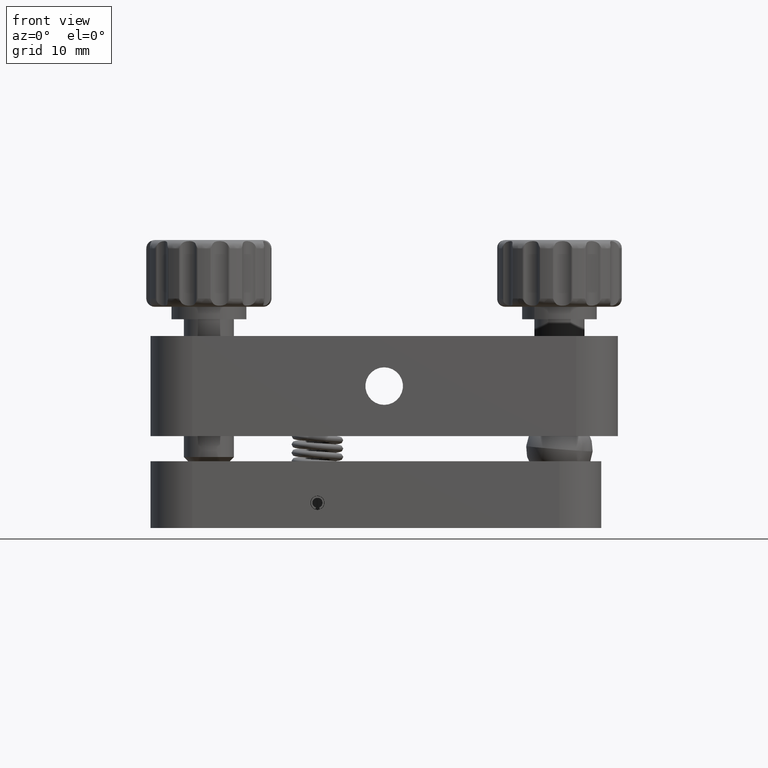
[diagram: clean part render]
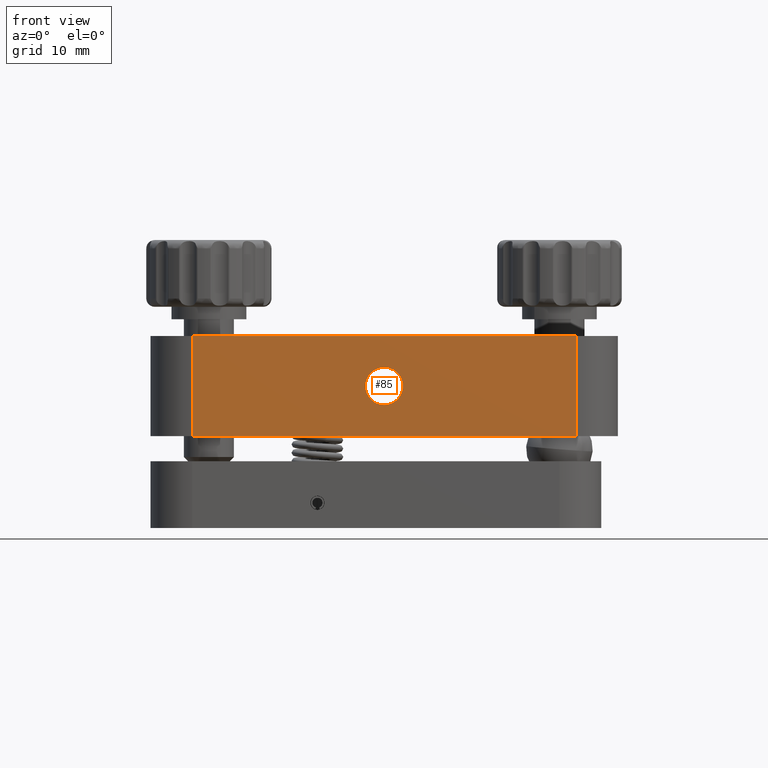
[diagram: same view with one face highlighted and labeled with its STEP entity id]
A machine part, front view. The second image highlights one B-rep face of the part: STEP entity #85.
In plain terms, the highlighted planar face has unit normal (-0, -1, 0).
Its self-contained STEP definition (entity closure, byte-faithful):
#85 = ADVANCED_FACE ( 'NONE', ( #11454, #5764 ), #19675, .T. ) ;
#942 = CARTESIAN_POINT ( 'NONE',  ( -22.99999999999997200, -28.00000000000000000, 6.000000000000000000 ) ) ;
#1450 = EDGE_CURVE ( 'NONE', #5924, #11121, #3036, .T. ) ;
#2143 = AXIS2_PLACEMENT_3D ( 'NONE', #4170, #10253, #8809 ) ;
#3036 = LINE ( 'NONE', #6742, #7940 ) ;
#3548 = ORIENTED_EDGE ( 'NONE', *, *, #1450, .F. ) ;
#3875 = VECTOR ( 'NONE', #13483, 1000.000000000000000 ) ;
#4170 = CARTESIAN_POINT ( 'NONE',  ( -22.99999999999996800, -28.00000000000000000, 6.000000000000000000 ) ) ;
#4445 = CARTESIAN_POINT ( 'NONE',  ( -3.275831096672979200E-015, -28.00000000000000700, -2.249999999999999100 ) ) ;
#5192 = VECTOR ( 'NONE', #7336, 1000.000000000000000 ) ;
#5764 = FACE_OUTER_BOUND ( 'NONE', #15840, .T. ) ;
#5918 = VECTOR ( 'NONE', #15021, 1000.000000000000000 ) ;
#5924 = VERTEX_POINT ( 'NONE', #18433 ) ;
#6194 = VERTEX_POINT ( 'NONE', #12936 ) ;
#6429 = AXIS2_PLACEMENT_3D ( 'NONE', #17209, #18527, #12411 ) ;
#6742 = CARTESIAN_POINT ( 'NONE',  ( -22.99999999999996800, -28.00000000000000000, -6.000000000000000000 ) ) ;
#7336 = DIRECTION ( 'NONE',  ( 0.0000000000000000000, 0.0000000000000000000, -1.000000000000000000 ) ) ;
#7577 = CIRCLE ( 'NONE', #6429, 2.249999999999999100 ) ;
#7940 = VECTOR ( 'NONE', #17845, 1000.000000000000000 ) ;
#8042 = LINE ( 'NONE', #942, #3875 ) ;
#8428 = EDGE_LOOP ( 'NONE', ( #8754, #14809 ) ) ;
#8754 = ORIENTED_EDGE ( 'NONE', *, *, #12543, .F. ) ;
#8809 = DIRECTION ( 'NONE',  ( -1.000000000000000000, 2.733061550323950700E-016, 0.0000000000000000000 ) ) ;
#9009 = ORIENTED_EDGE ( 'NONE', *, *, #14386, .T. ) ;
#9264 = EDGE_CURVE ( 'NONE', #17997, #20363, #7577, .T. ) ;
#10074 = EDGE_CURVE ( 'NONE', #6194, #11121, #8042, .T. ) ;
#10253 = DIRECTION ( 'NONE',  ( -2.733061550323950700E-016, -1.000000000000000000, 0.0000000000000000000 ) ) ;
#11121 = VERTEX_POINT ( 'NONE', #17628 ) ;
#11261 = CARTESIAN_POINT ( 'NONE',  ( 22.99999999999995700, -28.00000000000001400, 6.000000000000000000 ) ) ;
#11454 = FACE_BOUND ( 'NONE', #8428, .T. ) ;
#12411 = DIRECTION ( 'NONE',  ( -1.000000000000000000, 0.0000000000000000000, 0.0000000000000000000 ) ) ;
#12543 = EDGE_CURVE ( 'NONE', #20363, #17997, #16346, .T. ) ;
#12891 = ORIENTED_EDGE ( 'NONE', *, *, #14933, .F. ) ;
#12936 = CARTESIAN_POINT ( 'NONE',  ( -22.99999999999997200, -28.00000000000000000, 6.000000000000000000 ) ) ;
#13190 = AXIS2_PLACEMENT_3D ( 'NONE', #15017, #16818, #18317 ) ;
#13483 = DIRECTION ( 'NONE',  ( 0.0000000000000000000, 0.0000000000000000000, -1.000000000000000000 ) ) ;
#13501 = CARTESIAN_POINT ( 'NONE',  ( -22.99999999999996800, -28.00000000000000000, 6.000000000000000000 ) ) ;
#14055 = ORIENTED_EDGE ( 'NONE', *, *, #10074, .T. ) ;
#14081 = LINE ( 'NONE', #18359, #5192 ) ;
#14315 = LINE ( 'NONE', #13501, #5918 ) ;
#14386 = EDGE_CURVE ( 'NONE', #15795, #6194, #14315, .T. ) ;
#14809 = ORIENTED_EDGE ( 'NONE', *, *, #9264, .F. ) ;
#14933 = EDGE_CURVE ( 'NONE', #15795, #5924, #14081, .T. ) ;
#15017 = CARTESIAN_POINT ( 'NONE',  ( -3.428897790702657100E-015, -28.00000000000000700, 0.0000000000000000000 ) ) ;
#15021 = DIRECTION ( 'NONE',  ( -1.000000000000000000, 2.733061550323950700E-016, 0.0000000000000000000 ) ) ;
#15795 = VERTEX_POINT ( 'NONE', #11261 ) ;
#15840 = EDGE_LOOP ( 'NONE', ( #3548, #12891, #9009, #14055 ) ) ;
#15844 = CARTESIAN_POINT ( 'NONE',  ( -3.000285566864825100E-015, -28.00000000000000700, 2.249999999999999100 ) ) ;
#16346 = CIRCLE ( 'NONE', #13190, 2.249999999999999100 ) ;
#16818 = DIRECTION ( 'NONE',  ( -2.733061550323950700E-016, -1.000000000000000000, 0.0000000000000000000 ) ) ;
#17209 = CARTESIAN_POINT ( 'NONE',  ( -3.428897790702657100E-015, -28.00000000000000700, 0.0000000000000000000 ) ) ;
#17628 = CARTESIAN_POINT ( 'NONE',  ( -22.99999999999997200, -28.00000000000000000, -6.000000000000000000 ) ) ;
#17845 = DIRECTION ( 'NONE',  ( -1.000000000000000000, 2.733061550323950700E-016, 0.0000000000000000000 ) ) ;
#17997 = VERTEX_POINT ( 'NONE', #4445 ) ;
#18317 = DIRECTION ( 'NONE',  ( -1.000000000000000000, 0.0000000000000000000, 0.0000000000000000000 ) ) ;
#18359 = CARTESIAN_POINT ( 'NONE',  ( 22.99999999999995700, -28.00000000000001400, 6.000000000000000000 ) ) ;
#18433 = CARTESIAN_POINT ( 'NONE',  ( 22.99999999999995700, -28.00000000000001400, -6.000000000000000000 ) ) ;
#18527 = DIRECTION ( 'NONE',  ( -2.733061550323950700E-016, -1.000000000000000000, 0.0000000000000000000 ) ) ;
#19675 = PLANE ( 'NONE',  #2143 ) ;
#20363 = VERTEX_POINT ( 'NONE', #15844 ) ;